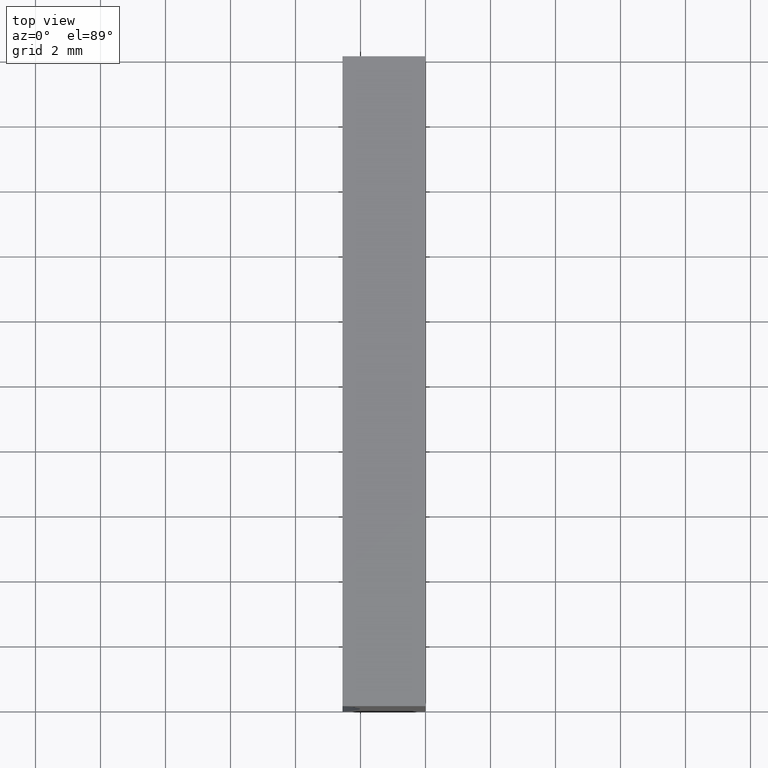
[diagram: clean part render]
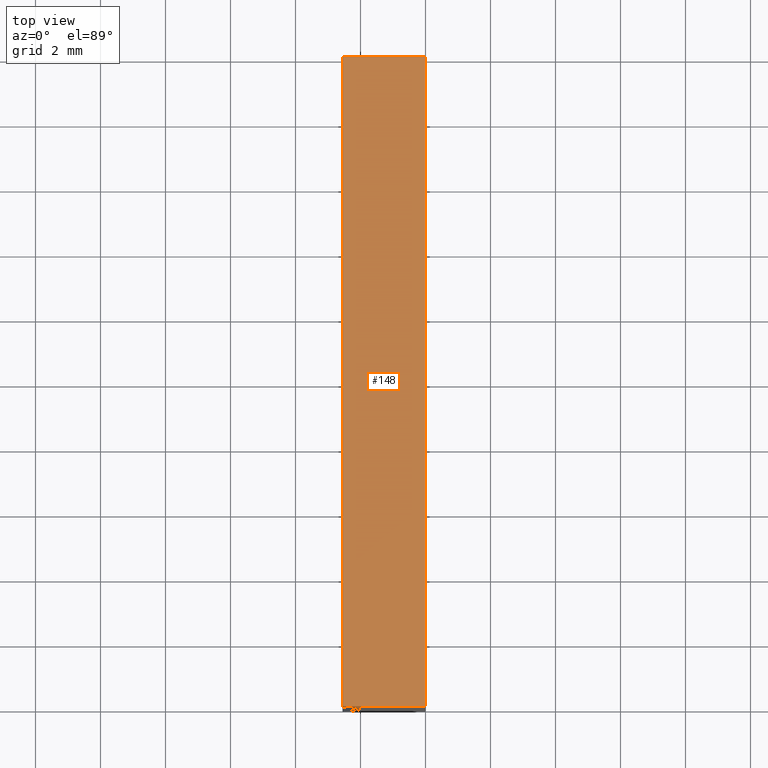
[diagram: same view with one face highlighted and labeled with its STEP entity id]
A machine part, top view. The second image highlights one B-rep face of the part: STEP entity #148.
In plain terms, the highlighted planar face has unit normal (-0, 0, -1).
Its self-contained STEP definition (entity closure, byte-faithful):
#5 = ORIENTED_EDGE ( 'NONE', *, *, #142, .F. ) ;
#15 = AXIS2_PLACEMENT_3D ( 'NONE', #103, #203, #186 ) ;
#19 = EDGE_LOOP ( 'NONE', ( #106, #143, #5, #30 ) ) ;
#24 = VERTEX_POINT ( 'NONE', #86 ) ;
#30 = ORIENTED_EDGE ( 'NONE', *, *, #104, .T. ) ;
#37 = VECTOR ( 'NONE', #176, 1000.000000000000000 ) ;
#47 = CARTESIAN_POINT ( 'NONE',  ( 6.123233995736766300E-016, 0.0000000000000000000, 10.00000000000000000 ) ) ;
#54 = FACE_OUTER_BOUND ( 'NONE', #19, .T. ) ;
#71 = CARTESIAN_POINT ( 'NONE',  ( 6.123233995736766300E-016, 20.00000000000000000, 10.00000000000000000 ) ) ;
#73 = EDGE_CURVE ( 'NONE', #24, #184, #155, .T. ) ;
#75 = VERTEX_POINT ( 'NONE', #167 ) ;
#79 = PLANE ( 'NONE',  #15 ) ;
#80 = DIRECTION ( 'NONE',  ( 1.000000000000000000, -0.0000000000000000000, -6.797444814751704400E-016 ) ) ;
#86 = CARTESIAN_POINT ( 'NONE',  ( -2.552022889854343600, 0.0000000000000000000, 10.00000000000000200 ) ) ;
#89 = VECTOR ( 'NONE', #99, 1000.000000000000000 ) ;
#99 = DIRECTION ( 'NONE',  ( 1.000000000000000000, -0.0000000000000000000, -6.797444814751704400E-016 ) ) ;
#103 = CARTESIAN_POINT ( 'NONE',  ( 6.123233995736766300E-016, 20.00000000000000000, 10.00000000000000000 ) ) ;
#104 = EDGE_CURVE ( 'NONE', #75, #24, #126, .T. ) ;
#105 = CARTESIAN_POINT ( 'NONE',  ( 6.123233995736766300E-016, 20.00000000000000000, 10.00000000000000000 ) ) ;
#106 = ORIENTED_EDGE ( 'NONE', *, *, #73, .T. ) ;
#113 = CARTESIAN_POINT ( 'NONE',  ( -2.552022889854343600, 20.00000000000000000, 10.00000000000000200 ) ) ;
#120 = CARTESIAN_POINT ( 'NONE',  ( 6.123233995736766300E-016, 0.0000000000000000000, 10.00000000000000000 ) ) ;
#126 = LINE ( 'NONE', #113, #158 ) ;
#132 = CARTESIAN_POINT ( 'NONE',  ( 6.123233995736766300E-016, 20.00000000000000000, 10.00000000000000000 ) ) ;
#136 = VECTOR ( 'NONE', #80, 1000.000000000000000 ) ;
#142 = EDGE_CURVE ( 'NONE', #75, #150, #193, .T. ) ;
#143 = ORIENTED_EDGE ( 'NONE', *, *, #204, .F. ) ;
#148 = ADVANCED_FACE ( 'NONE', ( #54 ), #79, .F. ) ;
#150 = VERTEX_POINT ( 'NONE', #71 ) ;
#155 = LINE ( 'NONE', #120, #136 ) ;
#158 = VECTOR ( 'NONE', #181, 1000.000000000000000 ) ;
#167 = CARTESIAN_POINT ( 'NONE',  ( -2.552022889854343600, 20.00000000000000000, 10.00000000000000200 ) ) ;
#176 = DIRECTION ( 'NONE',  ( -0.0000000000000000000, -1.000000000000000000, -0.0000000000000000000 ) ) ;
#181 = DIRECTION ( 'NONE',  ( -0.0000000000000000000, -1.000000000000000000, -0.0000000000000000000 ) ) ;
#184 = VERTEX_POINT ( 'NONE', #47 ) ;
#186 = DIRECTION ( 'NONE',  ( -1.000000000000000000, 0.0000000000000000000, 6.797444814751704400E-016 ) ) ;
#193 = LINE ( 'NONE', #132, #89 ) ;
#201 = LINE ( 'NONE', #105, #37 ) ;
#203 = DIRECTION ( 'NONE',  ( -6.797444814751704400E-016, 0.0000000000000000000, -1.000000000000000000 ) ) ;
#204 = EDGE_CURVE ( 'NONE', #150, #184, #201, .T. ) ;